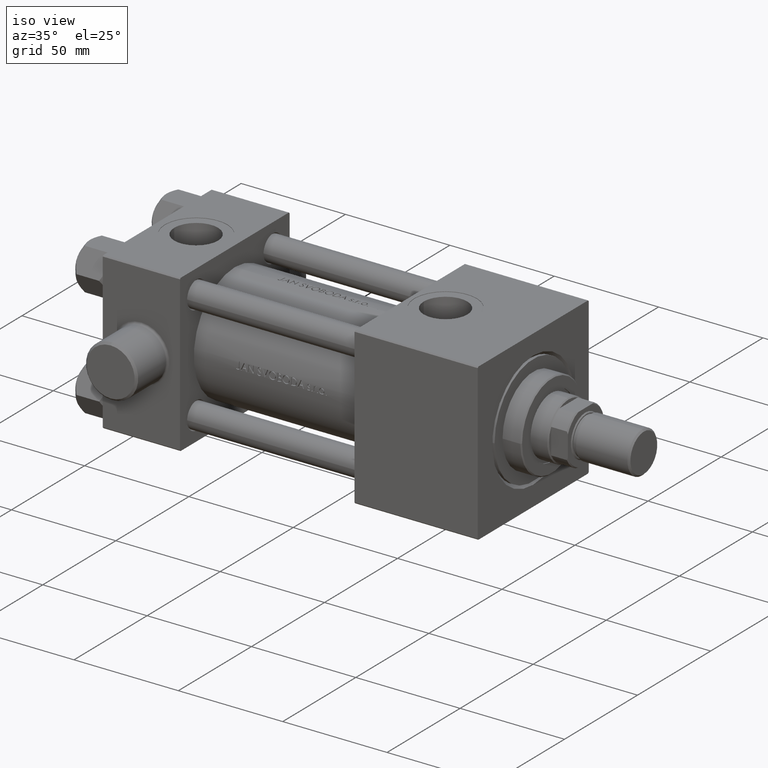
[diagram: clean part render]
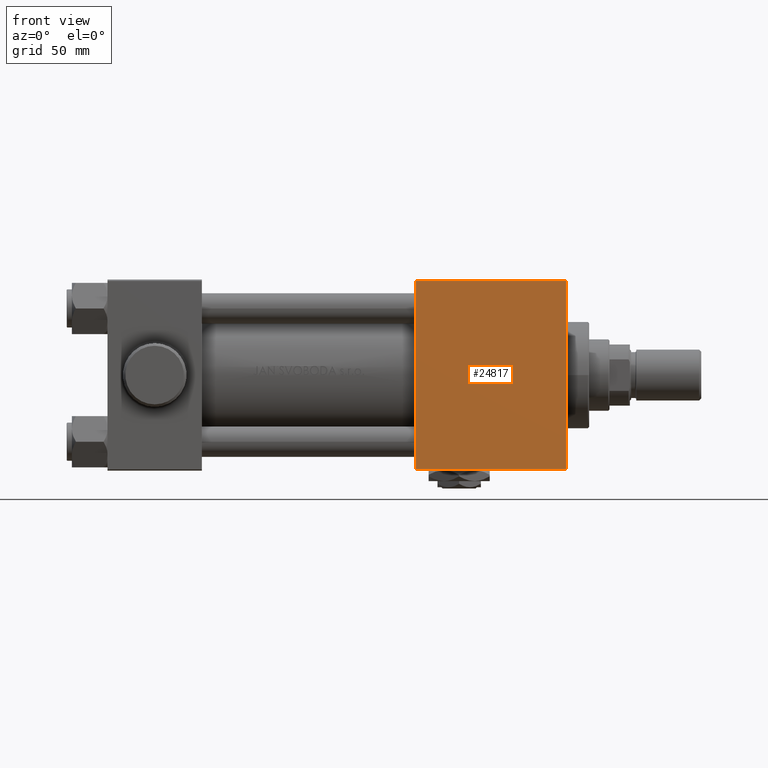
[diagram: tour spotlight — one face highlighted and labeled with its STEP entity id]
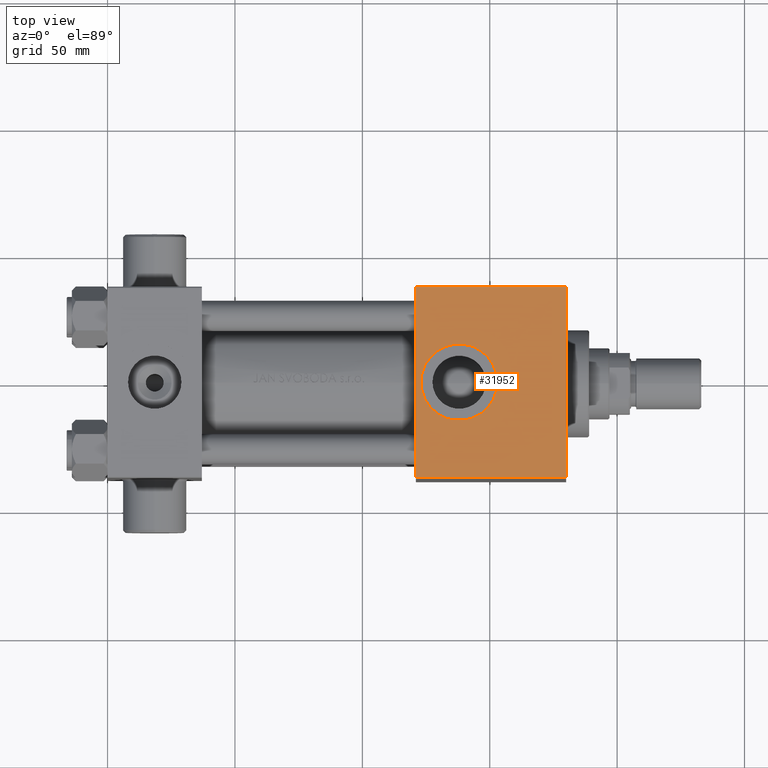
[diagram: tour spotlight — one face highlighted and labeled with its STEP entity id]
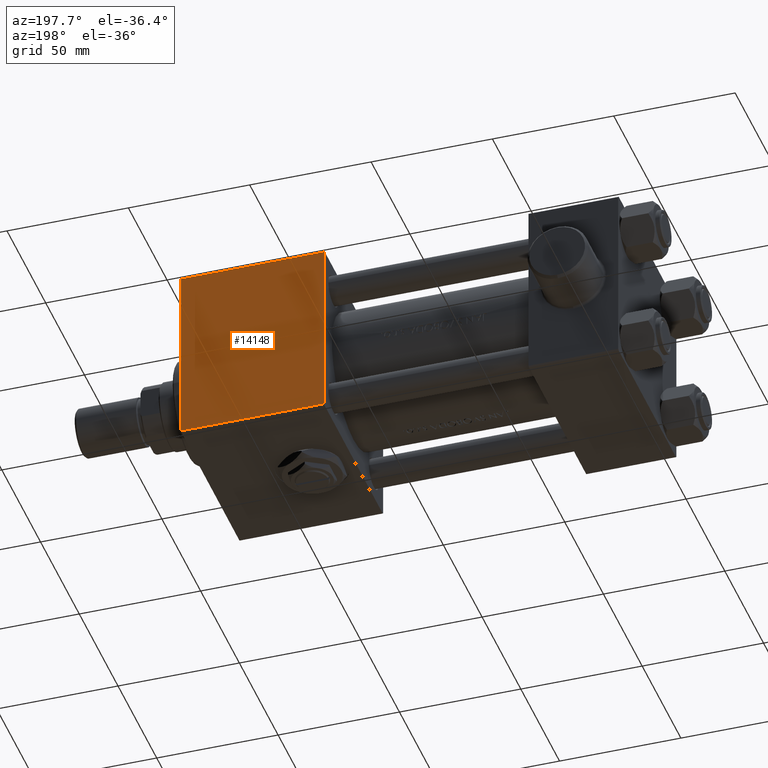
[diagram: tour spotlight — one face highlighted and labeled with its STEP entity id]
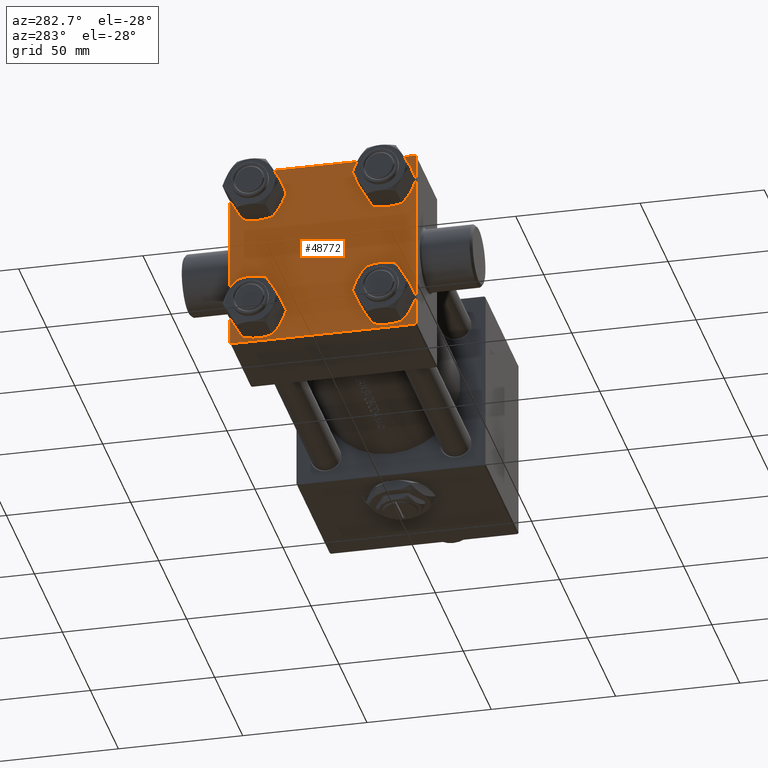
[diagram: tour spotlight — one face highlighted and labeled with its STEP entity id]
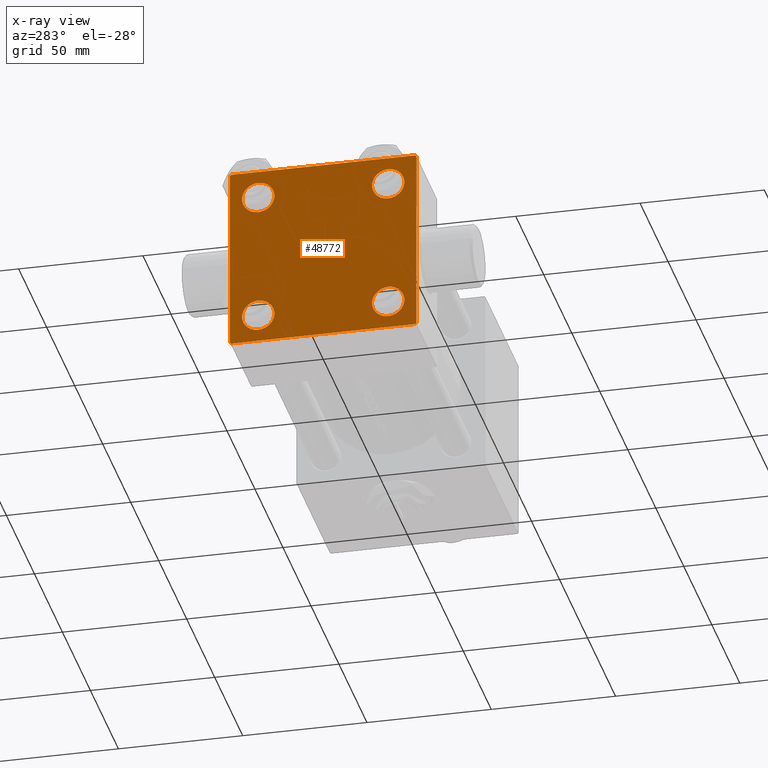
[diagram: x-ray of the same camera — body ghosted, this tour face saturated]
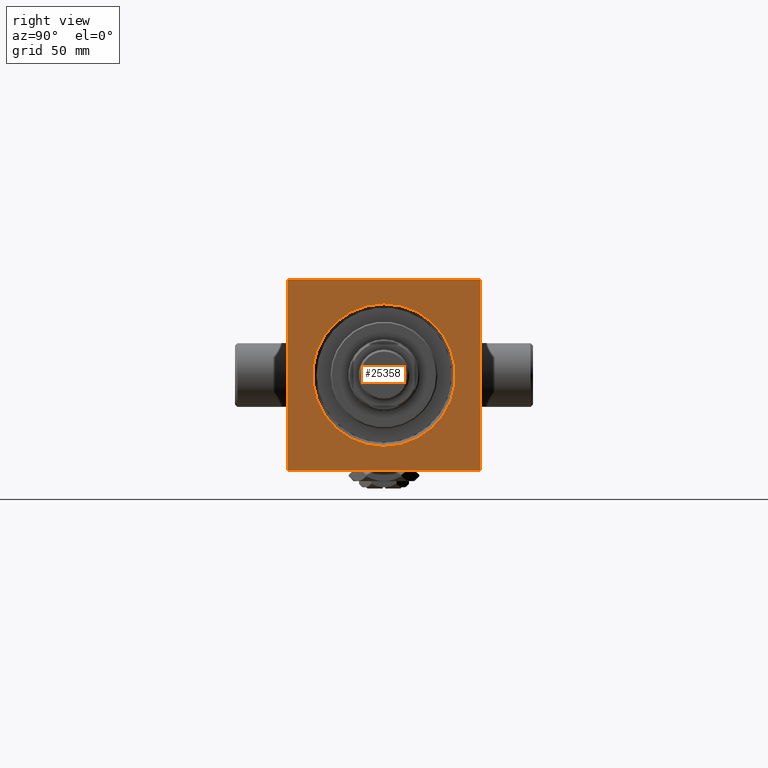
[diagram: tour spotlight — one face highlighted and labeled with its STEP entity id]
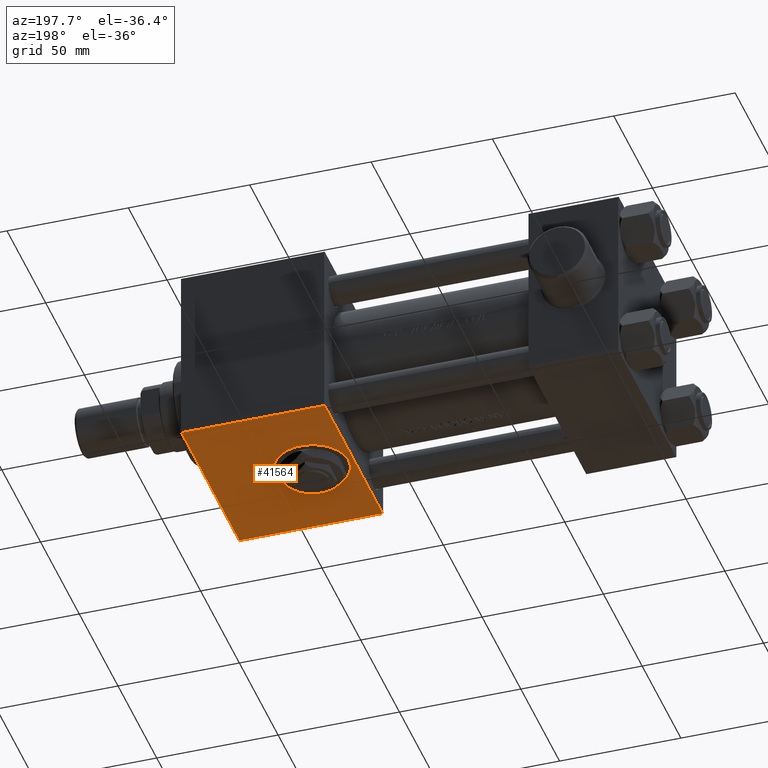
[diagram: tour spotlight — one face highlighted and labeled with its STEP entity id]
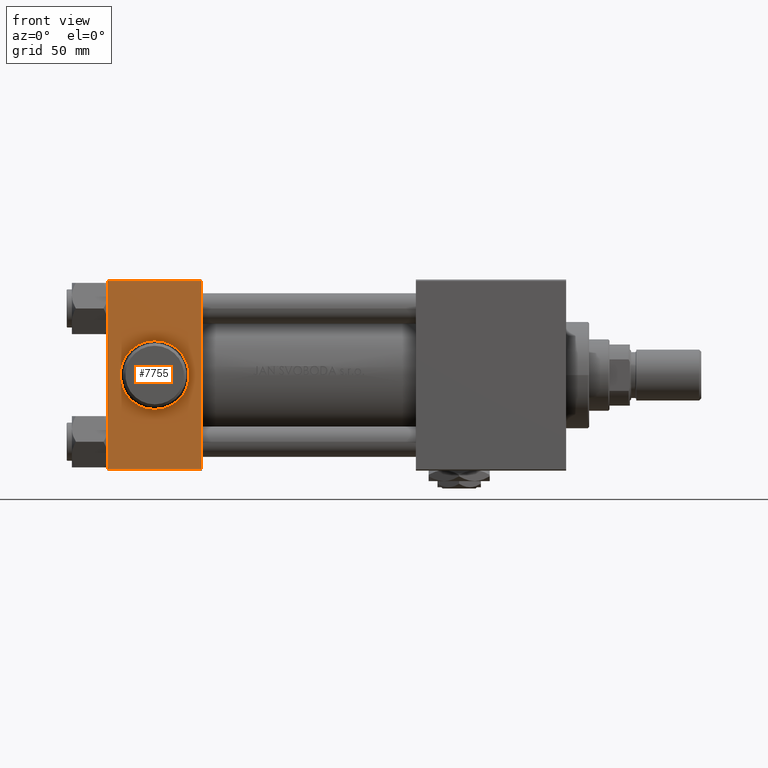
[diagram: tour spotlight — one face highlighted and labeled with its STEP entity id]
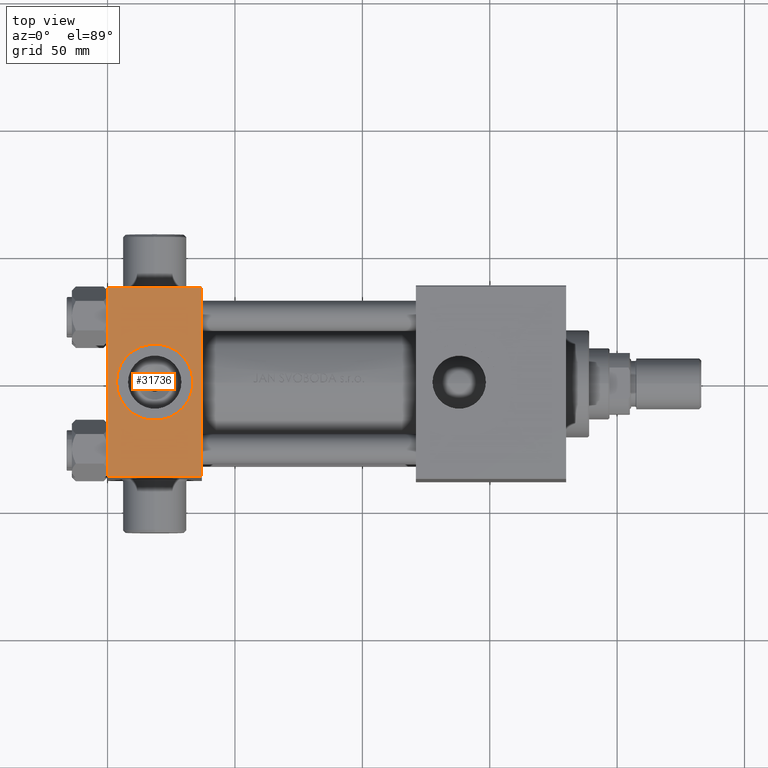
[diagram: tour spotlight — one face highlighted and labeled with its STEP entity id]
A machine part: a face-by-face anatomy tour. The part has 1133 B-rep faces; the first image is the clean iso view, then the 8 largest visible faces are spotlighted one at a time (largest first), each with its STEP entity span.

Face 1 — front view, entity #24817. In plain terms, the highlighted planar face has unit normal (0, 1, -0).
Definition (entity closure, byte-faithful):
#85 = AXIS2_PLACEMENT_3D ( 'NONE', #26295, #48593, #41884 ) ;
#612 = VECTOR ( 'NONE', #11657, 1000.000000000000000 ) ;
#1131 = CARTESIAN_POINT ( 'NONE',  ( 121.0000000000000000, -38.00000000000000000, 37.00000000000002842 ) ) ;
#1255 = LINE ( 'NONE', #11416, #612 ) ;
#4482 = ORIENTED_EDGE ( 'NONE', *, *, #5498, .T. ) ;
#4583 = VERTEX_POINT ( 'NONE', #20187 ) ;
#5498 = EDGE_CURVE ( 'NONE', #4583, #30965, #17186, .T. ) ;
#6534 = CARTESIAN_POINT ( 'NONE',  ( 180.0000000000000000, -38.00000000000000000, 37.00000000000002842 ) ) ;
#7461 = PLANE ( 'NONE',  #85 ) ;
#10933 = FACE_OUTER_BOUND ( 'NONE', #46636, .T. ) ;
#11416 = CARTESIAN_POINT ( 'NONE',  ( 180.0000000000000000, -38.00000000000000000, 37.50000000000000000 ) ) ;
#11657 = DIRECTION ( 'NONE',  ( 0.000000000000000000, -9.251858538542971581E-17, -1.000000000000000000 ) ) ;
#13559 = CARTESIAN_POINT ( 'NONE',  ( 121.0000000000000000, -38.00000000000000711, -36.99999999999998579 ) ) ;
#14429 = VECTOR ( 'NONE', #32552, 1000.000000000000000 ) ;
#15903 = CARTESIAN_POINT ( 'NONE',  ( 180.0000000000000000, -38.00000000000000711, -36.99999999999998579 ) ) ;
#17186 = LINE ( 'NONE', #6534, #22497 ) ;
#18176 = LINE ( 'NONE', #22129, #14429 ) ;
#19117 = DIRECTION ( 'NONE',  ( 1.000000000000000000, 0.000000000000000000, 0.000000000000000000 ) ) ;
#20180 = VERTEX_POINT ( 'NONE', #48051 ) ;
#20187 = CARTESIAN_POINT ( 'NONE',  ( 180.0000000000000000, -38.00000000000000000, 37.00000000000002842 ) ) ;
#22129 = CARTESIAN_POINT ( 'NONE',  ( 121.0000000000000000, -38.00000000000000000, 37.50000000000000000 ) ) ;
#22497 = VECTOR ( 'NONE', #36485, 1000.000000000000000 ) ;
#24817 = ADVANCED_FACE ( 'NONE', ( #10933 ), #7461, .F. ) ;
#25433 = ORIENTED_EDGE ( 'NONE', *, *, #45424, .T. ) ;
#26295 = CARTESIAN_POINT ( 'NONE',  ( 180.0000000000000000, -38.00000000000000000, 37.50000000000000000 ) ) ;
#30606 = ORIENTED_EDGE ( 'NONE', *, *, #49023, .T. ) ;
#30965 = VERTEX_POINT ( 'NONE', #1131 ) ;
#31800 = VECTOR ( 'NONE', #19117, 1000.000000000000000 ) ;
#32552 = DIRECTION ( 'NONE',  ( 0.000000000000000000, -9.251858538542971581E-17, -1.000000000000000000 ) ) ;
#34223 = LINE ( 'NONE', #15903, #31800 ) ;
#35606 = EDGE_CURVE ( 'NONE', #4583, #20180, #1255, .T. ) ;
#36485 = DIRECTION ( 'NONE',  ( -1.000000000000000000, 0.000000000000000000, 0.000000000000000000 ) ) ;
#41884 = DIRECTION ( 'NONE',  ( 0.000000000000000000, 9.251858538542971581E-17, 1.000000000000000000 ) ) ;
#42983 = VERTEX_POINT ( 'NONE', #13559 ) ;
#43966 = ORIENTED_EDGE ( 'NONE', *, *, #35606, .F. ) ;
#45424 = EDGE_CURVE ( 'NONE', #42983, #20180, #34223, .T. ) ;
#46636 = EDGE_LOOP ( 'NONE', ( #30606, #25433, #43966, #4482 ) ) ;
#48051 = CARTESIAN_POINT ( 'NONE',  ( 180.0000000000000000, -38.00000000000000711, -36.99999999999998579 ) ) ;
#48593 = DIRECTION ( 'NONE',  ( 0.000000000000000000, 1.000000000000000000, -9.251858538542971581E-17 ) ) ;
#49023 = EDGE_CURVE ( 'NONE', #30965, #42983, #18176, .T. ) ;

Face 2 — top view, entity #31952. In plain terms, the highlighted planar face has unit normal (0, 0, -1).
Definition (entity closure, byte-faithful):
#525 = EDGE_CURVE ( 'NONE', #19227, #16995, #3499, .T. ) ;
#1736 = VECTOR ( 'NONE', #9128, 1000.000000000000000 ) ;
#2059 = FACE_OUTER_BOUND ( 'NONE', #45504, .T. ) ;
#2088 = LINE ( 'NONE', #13740, #21514 ) ;
#2390 = EDGE_CURVE ( 'NONE', #18001, #47969, #32340, .T. ) ;
#3499 = CIRCLE ( 'NONE', #43057, 15.00000000000001421 ) ;
#3519 = ORIENTED_EDGE ( 'NONE', *, *, #2390, .T. ) ;
#6255 = FACE_BOUND ( 'NONE', #34344, .T. ) ;
#6538 = DIRECTION ( 'NONE',  ( 0.000000000000000000, -1.000000000000000000, -9.130123557772669567E-17 ) ) ;
#6794 = EDGE_CURVE ( 'NONE', #16995, #19227, #39967, .T. ) ;
#7462 = CARTESIAN_POINT ( 'NONE',  ( 180.0000000000000000, -37.50000000000002842, 37.50000000000000000 ) ) ;
#8978 = EDGE_CURVE ( 'NONE', #47969, #33264, #17422, .T. ) ;
#9128 = DIRECTION ( 'NONE',  ( -1.000000000000000000, 0.000000000000000000, 0.000000000000000000 ) ) ;
#13728 = DIRECTION ( 'NONE',  ( 1.000000000000000000, 0.000000000000000000, 0.000000000000000000 ) ) ;
#13740 = CARTESIAN_POINT ( 'NONE',  ( 180.0000000000000000, 38.00000000000000000, 37.50000000000000711 ) ) ;
#14435 = CARTESIAN_POINT ( 'NONE',  ( 138.0000000000000000, -3.423796334164751322E-15, 37.50000000000000711 ) ) ;
#16327 = VECTOR ( 'NONE', #13728, 1000.000000000000000 ) ;
#16995 = VERTEX_POINT ( 'NONE', #44647 ) ;
#17157 = CARTESIAN_POINT ( 'NONE',  ( 180.0000000000000000, 38.00000000000000000, 37.50000000000000711 ) ) ;
#17422 = LINE ( 'NONE', #35752, #16327 ) ;
#18001 = VERTEX_POINT ( 'NONE', #33440 ) ;
#18909 = ORIENTED_EDGE ( 'NONE', *, *, #525, .F. ) ;
#19219 = ORIENTED_EDGE ( 'NONE', *, *, #6794, .F. ) ;
#19227 = VERTEX_POINT ( 'NONE', #34733 ) ;
#21360 = PLANE ( 'NONE',  #21648 ) ;
#21514 = VECTOR ( 'NONE', #6538, 1000.000000000000000 ) ;
#21648 = AXIS2_PLACEMENT_3D ( 'NONE', #17157, #32258, #25325 ) ;
#21775 = VECTOR ( 'NONE', #28628, 1000.000000000000000 ) ;
#25325 = DIRECTION ( 'NONE',  ( 0.000000000000000000, 1.000000000000000000, 9.130123557772669567E-17 ) ) ;
#26911 = EDGE_CURVE ( 'NONE', #37230, #33264, #2088, .T. ) ;
#27133 = CARTESIAN_POINT ( 'NONE',  ( 121.0000000000000000, -37.50000000000002842, 37.50000000000000000 ) ) ;
#28050 = ORIENTED_EDGE ( 'NONE', *, *, #26911, .F. ) ;
#28628 = DIRECTION ( 'NONE',  ( 0.000000000000000000, -1.000000000000000000, -9.130123557772669567E-17 ) ) ;
#28782 = ORIENTED_EDGE ( 'NONE', *, *, #8978, .T. ) ;
#31645 = LINE ( 'NONE', #46780, #1736 ) ;
#31952 = ADVANCED_FACE ( 'NONE', ( #6255, #2059 ), #21360, .F. ) ;
#32258 = DIRECTION ( 'NONE',  ( 0.000000000000000000, 9.130123557772669567E-17, -1.000000000000000000 ) ) ;
#32340 = LINE ( 'NONE', #47471, #21775 ) ;
#33264 = VERTEX_POINT ( 'NONE', #7462 ) ;
#33440 = CARTESIAN_POINT ( 'NONE',  ( 121.0000000000000000, 37.50000000000002842, 37.50000000000000711 ) ) ;
#33636 = AXIS2_PLACEMENT_3D ( 'NONE', #37565, #36608, #41045 ) ;
#34344 = EDGE_LOOP ( 'NONE', ( #18909, #19219 ) ) ;
#34733 = CARTESIAN_POINT ( 'NONE',  ( 153.0000000000000284, -3.423796334164751322E-15, 37.50000000000000711 ) ) ;
#35752 = CARTESIAN_POINT ( 'NONE',  ( 180.0000000000000000, -37.50000000000002842, 37.50000000000000000 ) ) ;
#36608 = DIRECTION ( 'NONE',  ( 0.000000000000000000, 0.000000000000000000, 1.000000000000000000 ) ) ;
#36706 = CARTESIAN_POINT ( 'NONE',  ( 180.0000000000000000, 37.50000000000002842, 37.50000000000000711 ) ) ;
#37230 = VERTEX_POINT ( 'NONE', #36706 ) ;
#37565 = CARTESIAN_POINT ( 'NONE',  ( 138.0000000000000000, -3.423796334164751322E-15, 37.50000000000000711 ) ) ;
#39967 = CIRCLE ( 'NONE', #33636, 15.00000000000001421 ) ;
#41045 = DIRECTION ( 'NONE',  ( 1.000000000000000000, 0.000000000000000000, 0.000000000000000000 ) ) ;
#43057 = AXIS2_PLACEMENT_3D ( 'NONE', #14435, #44390, #43910 ) ;
#43910 = DIRECTION ( 'NONE',  ( 1.000000000000000000, 0.000000000000000000, 0.000000000000000000 ) ) ;
#44390 = DIRECTION ( 'NONE',  ( 0.000000000000000000, 0.000000000000000000, 1.000000000000000000 ) ) ;
#44647 = CARTESIAN_POINT ( 'NONE',  ( 122.9999999999999858, -1.586826135443718775E-15, 37.50000000000000711 ) ) ;
#44814 = ORIENTED_EDGE ( 'NONE', *, *, #45002, .T. ) ;
#45002 = EDGE_CURVE ( 'NONE', #37230, #18001, #31645, .T. ) ;
#45504 = EDGE_LOOP ( 'NONE', ( #3519, #28782, #28050, #44814 ) ) ;
#46780 = CARTESIAN_POINT ( 'NONE',  ( 121.0000000000000000, 37.50000000000002842, 37.50000000000000711 ) ) ;
#47471 = CARTESIAN_POINT ( 'NONE',  ( 121.0000000000000000, 38.00000000000000000, 37.50000000000000711 ) ) ;
#47969 = VERTEX_POINT ( 'NONE', #27133 ) ;

Face 3 — auxiliary view, entity #14148. In plain terms, the highlighted planar face has unit normal (0, 1, 0).
Definition (entity closure, byte-faithful):
#402 = ORIENTED_EDGE ( 'NONE', *, *, #32460, .T. ) ;
#1363 = VERTEX_POINT ( 'NONE', #34819 ) ;
#6849 = DIRECTION ( 'NONE',  ( 0.000000000000000000, 0.000000000000000000, -1.000000000000000000 ) ) ;
#8194 = LINE ( 'NONE', #38878, #35731 ) ;
#10325 = PLANE ( 'NONE',  #46522 ) ;
#14063 = CARTESIAN_POINT ( 'NONE',  ( 180.0000000000000000, 38.00000000000000000, 37.00000000000006395 ) ) ;
#14148 = ADVANCED_FACE ( 'NONE', ( #44016 ), #10325, .T. ) ;
#15056 = CARTESIAN_POINT ( 'NONE',  ( 121.0000000000000000, 38.00000000000000000, 37.00000000000006395 ) ) ;
#18233 = CARTESIAN_POINT ( 'NONE',  ( 180.0000000000000000, 38.00000000000000000, -37.00000000000000711 ) ) ;
#19587 = VECTOR ( 'NONE', #43342, 1000.000000000000000 ) ;
#21645 = ORIENTED_EDGE ( 'NONE', *, *, #35688, .T. ) ;
#24013 = VECTOR ( 'NONE', #38969, 1000.000000000000000 ) ;
#24110 = CARTESIAN_POINT ( 'NONE',  ( 180.0000000000000000, 38.00000000000000000, 37.00000000000006395 ) ) ;
#24708 = DIRECTION ( 'NONE',  ( 0.000000000000000000, -0.000000000000000000, 1.000000000000000000 ) ) ;
#25680 = CARTESIAN_POINT ( 'NONE',  ( 180.0000000000000000, 38.00000000000000000, 37.50000000000000711 ) ) ;
#27346 = LINE ( 'NONE', #24110, #24013 ) ;
#28355 = CARTESIAN_POINT ( 'NONE',  ( 180.0000000000000000, 38.00000000000000000, -37.00000000000000711 ) ) ;
#32460 = EDGE_CURVE ( 'NONE', #47015, #33831, #27346, .T. ) ;
#33097 = CARTESIAN_POINT ( 'NONE',  ( 180.0000000000000000, 38.00000000000000000, 37.50000000000000711 ) ) ;
#33831 = VERTEX_POINT ( 'NONE', #14063 ) ;
#34207 = EDGE_LOOP ( 'NONE', ( #44006, #402, #37947, #21645 ) ) ;
#34675 = DIRECTION ( 'NONE',  ( 0.000000000000000000, 0.000000000000000000, -1.000000000000000000 ) ) ;
#34819 = CARTESIAN_POINT ( 'NONE',  ( 121.0000000000000000, 38.00000000000000000, -37.00000000000000711 ) ) ;
#35412 = LINE ( 'NONE', #25680, #47290 ) ;
#35688 = EDGE_CURVE ( 'NONE', #36139, #1363, #47318, .T. ) ;
#35691 = EDGE_CURVE ( 'NONE', #33831, #36139, #35412, .T. ) ;
#35731 = VECTOR ( 'NONE', #34675, 1000.000000000000000 ) ;
#36139 = VERTEX_POINT ( 'NONE', #28355 ) ;
#37947 = ORIENTED_EDGE ( 'NONE', *, *, #35691, .T. ) ;
#38878 = CARTESIAN_POINT ( 'NONE',  ( 121.0000000000000000, 38.00000000000000000, 37.50000000000000711 ) ) ;
#38969 = DIRECTION ( 'NONE',  ( 1.000000000000000000, 0.000000000000000000, 0.000000000000000000 ) ) ;
#43342 = DIRECTION ( 'NONE',  ( -1.000000000000000000, 0.000000000000000000, 0.000000000000000000 ) ) ;
#44006 = ORIENTED_EDGE ( 'NONE', *, *, #48172, .F. ) ;
#44016 = FACE_OUTER_BOUND ( 'NONE', #34207, .T. ) ;
#46522 = AXIS2_PLACEMENT_3D ( 'NONE', #33097, #48223, #24708 ) ;
#47015 = VERTEX_POINT ( 'NONE', #15056 ) ;
#47290 = VECTOR ( 'NONE', #6849, 1000.000000000000000 ) ;
#47318 = LINE ( 'NONE', #18233, #19587 ) ;
#48172 = EDGE_CURVE ( 'NONE', #47015, #1363, #8194, .T. ) ;
#48223 = DIRECTION ( 'NONE',  ( -0.000000000000000000, 1.000000000000000000, 0.000000000000000000 ) ) ;

Face 4 — auxiliary view, entity #48772. An x-ray twin of the same camera follows (body ghosted, this face saturated) — the face is partly hidden behind the body. In plain terms, the highlighted planar face has unit normal (-1, 0, 0).
Definition (entity closure, byte-faithful):
#171 = AXIS2_PLACEMENT_3D ( 'NONE', #41247, #36566, #33088 ) ;
#997 = EDGE_CURVE ( 'NONE', #8246, #35215, #5908, .T. ) ;
#1084 = CIRCLE ( 'NONE', #39810, 6.500000000000023093 ) ;
#1728 = ORIENTED_EDGE ( 'NONE', *, *, #997, .F. ) ;
#1775 = CARTESIAN_POINT ( 'NONE',  ( 0.000000000000000000, 36.99999999999997868, -37.50000000000000000 ) ) ;
#1892 = AXIS2_PLACEMENT_3D ( 'NONE', #29811, #14722, #41699 ) ;
#2333 = EDGE_CURVE ( 'NONE', #17451, #11848, #38538, .T. ) ;
#3149 = LINE ( 'NONE', #41024, #8597 ) ;
#3246 = EDGE_LOOP ( 'NONE', ( #23034, #32550 ) ) ;
#3356 = CIRCLE ( 'NONE', #6507, 6.500000000000023093 ) ;
#4096 = ORIENTED_EDGE ( 'NONE', *, *, #31097, .T. ) ;
#4121 = DIRECTION ( 'NONE',  ( 0.000000000000000000, 0.000000000000000000, -1.000000000000000000 ) ) ;
#4994 = ORIENTED_EDGE ( 'NONE', *, *, #20473, .T. ) ;
#5127 = DIRECTION ( 'NONE',  ( -0.000000000000000000, -0.7071067811865474617, -0.7071067811865474617 ) ) ;
#5427 = DIRECTION ( 'NONE',  ( 0.000000000000000000, 0.000000000000000000, 1.000000000000000000 ) ) ;
#5707 = ORIENTED_EDGE ( 'NONE', *, *, #14259, .T. ) ;
#5803 = EDGE_CURVE ( 'NONE', #35590, #27983, #9080, .T. ) ;
#5903 = VECTOR ( 'NONE', #10590, 1000.000000000000000 ) ;
#5908 = LINE ( 'NONE', #32143, #5903 ) ;
#5913 = EDGE_CURVE ( 'NONE', #24459, #42721, #8298, .T. ) ;
#6117 = EDGE_CURVE ( 'NONE', #27983, #35590, #20959, .T. ) ;
#6442 = CARTESIAN_POINT ( 'NONE',  ( 0.000000000000000000, 26.14999999999999858, -19.64999999999998792 ) ) ;
#6507 = AXIS2_PLACEMENT_3D ( 'NONE', #39396, #20586, #47342 ) ;
#6734 = ORIENTED_EDGE ( 'NONE', *, *, #39387, .F. ) ;
#7485 = DIRECTION ( 'NONE',  ( 1.000000000000000000, -0.000000000000000000, 0.000000000000000000 ) ) ;
#7939 = ORIENTED_EDGE ( 'NONE', *, *, #17158, .T. ) ;
#8073 = LINE ( 'NONE', #26657, #37083 ) ;
#8200 = CARTESIAN_POINT ( 'NONE',  ( 0.000000000000000000, -26.14999999999999147, -19.64999999999999503 ) ) ;
#8246 = VERTEX_POINT ( 'NONE', #27296 ) ;
#8298 = CIRCLE ( 'NONE', #32012, 6.500000000000023093 ) ;
#8498 = VECTOR ( 'NONE', #18928, 1000.000000000000000 ) ;
#8597 = VECTOR ( 'NONE', #29880, 1000.000000000000114 ) ;
#9080 = CIRCLE ( 'NONE', #23330, 6.500000000000015987 ) ;
#9289 = ORIENTED_EDGE ( 'NONE', *, *, #37109, .T. ) ;
#9325 = VERTEX_POINT ( 'NONE', #33677 ) ;
#9344 = FACE_BOUND ( 'NONE', #42440, .T. ) ;
#10261 = CARTESIAN_POINT ( 'NONE',  ( 0.000000000000000000, 37.24999999999999289, 37.24999999999999289 ) ) ;
#10590 = DIRECTION ( 'NONE',  ( 0.000000000000000000, 9.251858538542971581E-17, -1.000000000000000000 ) ) ;
#10764 = CARTESIAN_POINT ( 'NONE',  ( 0.000000000000000000, 37.49999999999999289, -37.50000000000000000 ) ) ;
#10799 = VERTEX_POINT ( 'NONE', #25085 ) ;
#11006 = CIRCLE ( 'NONE', #32363, 6.500000000000023093 ) ;
#11848 = VERTEX_POINT ( 'NONE', #1775 ) ;
#12074 = ORIENTED_EDGE ( 'NONE', *, *, #45421, .T. ) ;
#12166 = EDGE_LOOP ( 'NONE', ( #28601, #12074 ) ) ;
#12187 = CIRCLE ( 'NONE', #1892, 6.500000000000015987 ) ;
#12371 = DIRECTION ( 'NONE',  ( 1.000000000000000000, -0.000000000000000000, 0.000000000000000000 ) ) ;
#13946 = VERTEX_POINT ( 'NONE', #19038 ) ;
#14259 = EDGE_CURVE ( 'NONE', #9325, #17451, #33821, .T. ) ;
#14722 = DIRECTION ( 'NONE',  ( 1.000000000000000000, -0.000000000000000000, 0.000000000000000000 ) ) ;
#14781 = DIRECTION ( 'NONE',  ( 0.000000000000000000, -0.7071067811865524577, 0.7071067811865426878 ) ) ;
#15656 = DIRECTION ( 'NONE',  ( 1.000000000000000000, -0.000000000000000000, 0.000000000000000000 ) ) ;
#16071 = DIRECTION ( 'NONE',  ( 0.000000000000000000, -1.000000000000000000, -9.251858538542971581E-17 ) ) ;
#16087 = CARTESIAN_POINT ( 'NONE',  ( 0.000000000000000000, -26.14999999999999147, -26.15000000000000924 ) ) ;
#16573 = CARTESIAN_POINT ( 'NONE',  ( 0.000000000000000000, 37.49999999999999289, -36.99999999999998579 ) ) ;
#16851 = CARTESIAN_POINT ( 'NONE',  ( 0.000000000000000000, 26.14999999999999858, 26.15000000000000213 ) ) ;
#17087 = DIRECTION ( 'NONE',  ( 1.000000000000000000, -0.000000000000000000, 0.000000000000000000 ) ) ;
#17158 = EDGE_CURVE ( 'NONE', #35410, #17388, #11006, .T. ) ;
#17388 = VERTEX_POINT ( 'NONE', #35631 ) ;
#17451 = VERTEX_POINT ( 'NONE', #16573 ) ;
#18928 = DIRECTION ( 'NONE',  ( 0.000000000000000000, -1.000000000000000000, -9.251858538542972814E-17 ) ) ;
#18996 = CARTESIAN_POINT ( 'NONE',  ( 0.000000000000000000, -26.14999999999999147, -26.15000000000000924 ) ) ;
#19038 = CARTESIAN_POINT ( 'NONE',  ( 0.000000000000000000, 36.99999999999999289, 37.50000000000000000 ) ) ;
#19885 = EDGE_LOOP ( 'NONE', ( #5707, #30541, #48831, #4994, #1728, #9289, #6734, #37808 ) ) ;
#20473 = EDGE_CURVE ( 'NONE', #31251, #35215, #8073, .T. ) ;
#20586 = DIRECTION ( 'NONE',  ( 1.000000000000000000, -0.000000000000000000, 0.000000000000000000 ) ) ;
#20816 = EDGE_LOOP ( 'NONE', ( #4096, #7939 ) ) ;
#20959 = CIRCLE ( 'NONE', #46275, 6.500000000000015987 ) ;
#22130 = LINE ( 'NONE', #10261, #33268 ) ;
#22188 = CARTESIAN_POINT ( 'NONE',  ( 0.000000000000000000, 37.49999999999999289, 37.50000000000000000 ) ) ;
#23034 = ORIENTED_EDGE ( 'NONE', *, *, #5803, .T. ) ;
#23330 = AXIS2_PLACEMENT_3D ( 'NONE', #16087, #12371, #27471 ) ;
#23461 = ORIENTED_EDGE ( 'NONE', *, *, #45562, .T. ) ;
#24453 = FACE_BOUND ( 'NONE', #3246, .T. ) ;
#24459 = VERTEX_POINT ( 'NONE', #44436 ) ;
#24538 = EDGE_CURVE ( 'NONE', #13946, #9325, #22130, .T. ) ;
#24729 = CARTESIAN_POINT ( 'NONE',  ( 0.000000000000000000, -26.14999999999999147, 26.15000000000000924 ) ) ;
#24769 = CARTESIAN_POINT ( 'NONE',  ( 0.000000000000000000, -37.00000000000002132, -37.50000000000000711 ) ) ;
#24967 = DIRECTION ( 'NONE',  ( 1.000000000000000000, -0.000000000000000000, 0.000000000000000000 ) ) ;
#25085 = CARTESIAN_POINT ( 'NONE',  ( 0.000000000000000000, 26.14999999999999858, -32.65000000000001990 ) ) ;
#25128 = DIRECTION ( 'NONE',  ( 0.000000000000000000, 0.7071067811865474617, -0.7071067811865474617 ) ) ;
#25285 = VECTOR ( 'NONE', #16071, 1000.000000000000000 ) ;
#25909 = PLANE ( 'NONE',  #171 ) ;
#26373 = LINE ( 'NONE', #10764, #8498 ) ;
#26657 = CARTESIAN_POINT ( 'NONE',  ( 0.000000000000000000, -37.24999999999975842, -37.25000000000027001 ) ) ;
#26805 = DIRECTION ( 'NONE',  ( 0.000000000000000000, 0.000000000000000000, 1.000000000000000000 ) ) ;
#26889 = VERTEX_POINT ( 'NONE', #32288 ) ;
#27296 = CARTESIAN_POINT ( 'NONE',  ( 0.000000000000000000, -37.50000000000000711, 36.99999999999999289 ) ) ;
#27301 = CARTESIAN_POINT ( 'NONE',  ( 0.000000000000000000, 26.14999999999999858, 26.15000000000000213 ) ) ;
#27471 = DIRECTION ( 'NONE',  ( 0.000000000000000000, 0.000000000000000000, 1.000000000000000000 ) ) ;
#27741 = CARTESIAN_POINT ( 'NONE',  ( 0.000000000000000000, -26.14999999999999147, 32.65000000000003411 ) ) ;
#27983 = VERTEX_POINT ( 'NONE', #35422 ) ;
#28145 = CARTESIAN_POINT ( 'NONE',  ( 0.000000000000000000, 37.24999999999998579, -37.24999999999998579 ) ) ;
#28601 = ORIENTED_EDGE ( 'NONE', *, *, #31776, .T. ) ;
#28971 = LINE ( 'NONE', #44078, #25285 ) ;
#29811 = CARTESIAN_POINT ( 'NONE',  ( 0.000000000000000000, 26.14999999999999858, -26.15000000000000213 ) ) ;
#29880 = DIRECTION ( 'NONE',  ( -0.000000000000000000, 0.7071067811865474617, 0.7071067811865474617 ) ) ;
#30517 = CARTESIAN_POINT ( 'NONE',  ( 0.000000000000000000, -37.50000000000000000, -37.00000000000003553 ) ) ;
#30541 = ORIENTED_EDGE ( 'NONE', *, *, #2333, .T. ) ;
#31097 = EDGE_CURVE ( 'NONE', #17388, #35410, #1084, .T. ) ;
#31251 = VERTEX_POINT ( 'NONE', #24769 ) ;
#31776 = EDGE_CURVE ( 'NONE', #39323, #10799, #12187, .T. ) ;
#32012 = AXIS2_PLACEMENT_3D ( 'NONE', #24729, #24967, #5427 ) ;
#32143 = CARTESIAN_POINT ( 'NONE',  ( 0.000000000000000000, -37.50000000000000711, 37.49999999999999289 ) ) ;
#32288 = CARTESIAN_POINT ( 'NONE',  ( 0.000000000000000000, -37.00000000000000711, 37.49999999999999289 ) ) ;
#32363 = AXIS2_PLACEMENT_3D ( 'NONE', #27301, #7485, #26805 ) ;
#32550 = ORIENTED_EDGE ( 'NONE', *, *, #6117, .T. ) ;
#33088 = DIRECTION ( 'NONE',  ( -0.000000000000000000, 0.000000000000000000, 1.000000000000000000 ) ) ;
#33268 = VECTOR ( 'NONE', #25128, 1000.000000000000114 ) ;
#33677 = CARTESIAN_POINT ( 'NONE',  ( 0.000000000000000000, 37.49999999999999289, 37.00000000000000000 ) ) ;
#33821 = LINE ( 'NONE', #22188, #37793 ) ;
#34494 = CARTESIAN_POINT ( 'NONE',  ( 0.000000000000000000, 26.14999999999999858, 19.64999999999998437 ) ) ;
#34577 = DIRECTION ( 'NONE',  ( 1.000000000000000000, -0.000000000000000000, 0.000000000000000000 ) ) ;
#34706 = CARTESIAN_POINT ( 'NONE',  ( 0.000000000000000000, 26.14999999999999858, -26.15000000000000213 ) ) ;
#34713 = EDGE_CURVE ( 'NONE', #11848, #31251, #26373, .T. ) ;
#35215 = VERTEX_POINT ( 'NONE', #30517 ) ;
#35410 = VERTEX_POINT ( 'NONE', #34494 ) ;
#35422 = CARTESIAN_POINT ( 'NONE',  ( 0.000000000000000000, -26.14999999999999147, -32.65000000000002700 ) ) ;
#35590 = VERTEX_POINT ( 'NONE', #8200 ) ;
#35631 = CARTESIAN_POINT ( 'NONE',  ( 0.000000000000000000, 26.14999999999999858, 32.65000000000002700 ) ) ;
#35838 = FACE_BOUND ( 'NONE', #20816, .T. ) ;
#36566 = DIRECTION ( 'NONE',  ( -1.000000000000000000, 0.000000000000000000, -0.000000000000000000 ) ) ;
#37083 = VECTOR ( 'NONE', #14781, 1000.000000000000000 ) ;
#37109 = EDGE_CURVE ( 'NONE', #8246, #26889, #3149, .T. ) ;
#37455 = ORIENTED_EDGE ( 'NONE', *, *, #5913, .T. ) ;
#37793 = VECTOR ( 'NONE', #4121, 1000.000000000000000 ) ;
#37808 = ORIENTED_EDGE ( 'NONE', *, *, #24538, .T. ) ;
#38538 = LINE ( 'NONE', #28145, #41524 ) ;
#39323 = VERTEX_POINT ( 'NONE', #6442 ) ;
#39387 = EDGE_CURVE ( 'NONE', #13946, #26889, #28971, .T. ) ;
#39396 = CARTESIAN_POINT ( 'NONE',  ( 0.000000000000000000, -26.14999999999999147, 26.15000000000000924 ) ) ;
#39549 = FACE_BOUND ( 'NONE', #12166, .T. ) ;
#39617 = DIRECTION ( 'NONE',  ( 0.000000000000000000, 0.000000000000000000, 1.000000000000000000 ) ) ;
#39810 = AXIS2_PLACEMENT_3D ( 'NONE', #16851, #17087, #39617 ) ;
#40036 = FACE_OUTER_BOUND ( 'NONE', #19885, .T. ) ;
#41024 = CARTESIAN_POINT ( 'NONE',  ( -0.000000000000000000, -37.25000000000000000, 37.25000000000000000 ) ) ;
#41247 = CARTESIAN_POINT ( 'NONE',  ( 0.000000000000000000, 0.000000000000000000, 0.000000000000000000 ) ) ;
#41524 = VECTOR ( 'NONE', #5127, 1000.000000000000114 ) ;
#41699 = DIRECTION ( 'NONE',  ( 0.000000000000000000, 0.000000000000000000, 1.000000000000000000 ) ) ;
#41778 = DIRECTION ( 'NONE',  ( 0.000000000000000000, 0.000000000000000000, 1.000000000000000000 ) ) ;
#41899 = DIRECTION ( 'NONE',  ( 0.000000000000000000, 0.000000000000000000, 1.000000000000000000 ) ) ;
#42440 = EDGE_LOOP ( 'NONE', ( #23461, #37455 ) ) ;
#42721 = VERTEX_POINT ( 'NONE', #27741 ) ;
#44078 = CARTESIAN_POINT ( 'NONE',  ( 0.000000000000000000, 37.49999999999999289, 37.50000000000000000 ) ) ;
#44436 = CARTESIAN_POINT ( 'NONE',  ( 0.000000000000000000, -26.14999999999999147, 19.64999999999999147 ) ) ;
#45242 = CIRCLE ( 'NONE', #46073, 6.500000000000015987 ) ;
#45421 = EDGE_CURVE ( 'NONE', #10799, #39323, #45242, .T. ) ;
#45562 = EDGE_CURVE ( 'NONE', #42721, #24459, #3356, .T. ) ;
#46073 = AXIS2_PLACEMENT_3D ( 'NONE', #34706, #15656, #41899 ) ;
#46275 = AXIS2_PLACEMENT_3D ( 'NONE', #18996, #34577, #41778 ) ;
#47342 = DIRECTION ( 'NONE',  ( 0.000000000000000000, 0.000000000000000000, 1.000000000000000000 ) ) ;
#48772 = ADVANCED_FACE ( 'NONE', ( #9344, #24453, #39549, #35838, #40036 ), #25909, .T. ) ;
#48831 = ORIENTED_EDGE ( 'NONE', *, *, #34713, .T. ) ;

Face 5 — right view, entity #25358. In plain terms, the highlighted planar face has unit normal (-1, 0, 0).
Definition (entity closure, byte-faithful):
#13 = CARTESIAN_POINT ( 'NONE',  ( 180.0000000000000000, -37.50000000000001421, -37.50000000000000000 ) ) ;
#419 = DIRECTION ( 'NONE',  ( -0.000000000000000000, -0.7071067811865474617, -0.7071067811865474617 ) ) ;
#612 = VECTOR ( 'NONE', #11657, 1000.000000000000000 ) ;
#1078 = LINE ( 'NONE', #42918, #9296 ) ;
#1255 = LINE ( 'NONE', #11416, #612 ) ;
#2088 = LINE ( 'NONE', #13740, #21514 ) ;
#2375 = ORIENTED_EDGE ( 'NONE', *, *, #25937, .T. ) ;
#2668 = CARTESIAN_POINT ( 'NONE',  ( 180.0000000000000000, 0.000000000000000000, 0.000000000000000000 ) ) ;
#4231 = DIRECTION ( 'NONE',  ( 0.000000000000000000, 0.000000000000000000, 1.000000000000000000 ) ) ;
#4447 = ORIENTED_EDGE ( 'NONE', *, *, #7624, .T. ) ;
#4583 = VERTEX_POINT ( 'NONE', #20187 ) ;
#4647 = ORIENTED_EDGE ( 'NONE', *, *, #35606, .T. ) ;
#4867 = VERTEX_POINT ( 'NONE', #25618 ) ;
#4942 = CARTESIAN_POINT ( 'NONE',  ( 180.0000000000000000, -37.50000000000001421, -37.50000000000000000 ) ) ;
#4976 = VECTOR ( 'NONE', #40679, 1000.000000000000000 ) ;
#5950 = EDGE_CURVE ( 'NONE', #20180, #12998, #31650, .T. ) ;
#6538 = DIRECTION ( 'NONE',  ( 0.000000000000000000, -1.000000000000000000, -9.130123557772669567E-17 ) ) ;
#6625 = DIRECTION ( 'NONE',  ( 0.000000000000000000, 0.000000000000000000, 1.000000000000000000 ) ) ;
#6849 = DIRECTION ( 'NONE',  ( 0.000000000000000000, 0.000000000000000000, -1.000000000000000000 ) ) ;
#7462 = CARTESIAN_POINT ( 'NONE',  ( 180.0000000000000000, -37.50000000000002842, 37.50000000000000000 ) ) ;
#7624 = EDGE_CURVE ( 'NONE', #48792, #39876, #12300, .T. ) ;
#8753 = ORIENTED_EDGE ( 'NONE', *, *, #35691, .F. ) ;
#9296 = VECTOR ( 'NONE', #34985, 1000.000000000000000 ) ;
#9978 = CARTESIAN_POINT ( 'NONE',  ( 180.0000000000000000, 37.50000000000002842, 37.50000000000000711 ) ) ;
#10406 = VECTOR ( 'NONE', #36671, 1000.000000000000000 ) ;
#11416 = CARTESIAN_POINT ( 'NONE',  ( 180.0000000000000000, -38.00000000000000000, 37.50000000000000000 ) ) ;
#11656 = EDGE_LOOP ( 'NONE', ( #4447, #17138 ) ) ;
#11657 = DIRECTION ( 'NONE',  ( 0.000000000000000000, -9.251858538542971581E-17, -1.000000000000000000 ) ) ;
#12300 = CIRCLE ( 'NONE', #41526, 27.99999999999999645 ) ;
#12998 = VERTEX_POINT ( 'NONE', #13 ) ;
#13472 = LINE ( 'NONE', #9978, #4976 ) ;
#13740 = CARTESIAN_POINT ( 'NONE',  ( 180.0000000000000000, 38.00000000000000000, 37.50000000000000711 ) ) ;
#13850 = PLANE ( 'NONE',  #27778 ) ;
#14063 = CARTESIAN_POINT ( 'NONE',  ( 180.0000000000000000, 38.00000000000000000, 37.00000000000006395 ) ) ;
#14769 = CARTESIAN_POINT ( 'NONE',  ( 180.0000000000000000, 0.000000000000000000, -27.99999999999999645 ) ) ;
#15690 = ORIENTED_EDGE ( 'NONE', *, *, #5950, .T. ) ;
#17138 = ORIENTED_EDGE ( 'NONE', *, *, #20431, .T. ) ;
#17772 = VECTOR ( 'NONE', #20519, 1000.000000000000000 ) ;
#20180 = VERTEX_POINT ( 'NONE', #48051 ) ;
#20187 = CARTESIAN_POINT ( 'NONE',  ( 180.0000000000000000, -38.00000000000000000, 37.00000000000002842 ) ) ;
#20431 = EDGE_CURVE ( 'NONE', #39876, #48792, #43436, .T. ) ;
#20519 = DIRECTION ( 'NONE',  ( 0.000000000000000000, 0.7071067811865328068, -0.7071067811865622277 ) ) ;
#21514 = VECTOR ( 'NONE', #6538, 1000.000000000000000 ) ;
#23597 = ORIENTED_EDGE ( 'NONE', *, *, #35384, .F. ) ;
#24134 = ORIENTED_EDGE ( 'NONE', *, *, #26911, .T. ) ;
#24975 = FACE_BOUND ( 'NONE', #11656, .T. ) ;
#25289 = CARTESIAN_POINT ( 'NONE',  ( 180.0000000000000000, 38.00000000000000000, -37.00000000000000711 ) ) ;
#25358 = ADVANCED_FACE ( 'NONE', ( #24975, #29174 ), #13850, .F. ) ;
#25618 = CARTESIAN_POINT ( 'NONE',  ( 180.0000000000000000, 37.49999999999997158, -37.50000000000000711 ) ) ;
#25680 = CARTESIAN_POINT ( 'NONE',  ( 180.0000000000000000, 38.00000000000000000, 37.50000000000000711 ) ) ;
#25937 = EDGE_CURVE ( 'NONE', #4867, #36139, #44351, .T. ) ;
#26753 = CARTESIAN_POINT ( 'NONE',  ( 180.0000000000000000, 0.000000000000000000, 0.000000000000000000 ) ) ;
#26911 = EDGE_CURVE ( 'NONE', #37230, #33264, #2088, .T. ) ;
#27160 = LINE ( 'NONE', #32023, #47608 ) ;
#27778 = AXIS2_PLACEMENT_3D ( 'NONE', #40073, #36839, #44287 ) ;
#28355 = CARTESIAN_POINT ( 'NONE',  ( 180.0000000000000000, 38.00000000000000000, -37.00000000000000711 ) ) ;
#28405 = AXIS2_PLACEMENT_3D ( 'NONE', #2668, #32862, #6625 ) ;
#29174 = FACE_OUTER_BOUND ( 'NONE', #34977, .T. ) ;
#31650 = LINE ( 'NONE', #4942, #17772 ) ;
#32023 = CARTESIAN_POINT ( 'NONE',  ( 180.0000000000000000, -38.00000000000000000, 37.00000000000002842 ) ) ;
#32575 = EDGE_CURVE ( 'NONE', #33831, #37230, #13472, .T. ) ;
#32862 = DIRECTION ( 'NONE',  ( -1.000000000000000000, -0.000000000000000000, 0.000000000000000000 ) ) ;
#33264 = VERTEX_POINT ( 'NONE', #7462 ) ;
#33831 = VERTEX_POINT ( 'NONE', #14063 ) ;
#34977 = EDGE_LOOP ( 'NONE', ( #4647, #15690, #23597, #2375, #8753, #38584, #24134, #44790 ) ) ;
#34985 = DIRECTION ( 'NONE',  ( 0.000000000000000000, -1.000000000000000000, 9.130123557772667102E-17 ) ) ;
#35384 = EDGE_CURVE ( 'NONE', #4867, #12998, #1078, .T. ) ;
#35412 = LINE ( 'NONE', #25680, #47290 ) ;
#35606 = EDGE_CURVE ( 'NONE', #4583, #20180, #1255, .T. ) ;
#35691 = EDGE_CURVE ( 'NONE', #33831, #36139, #35412, .T. ) ;
#36139 = VERTEX_POINT ( 'NONE', #28355 ) ;
#36671 = DIRECTION ( 'NONE',  ( -0.000000000000000000, 0.7071067811865672237, 0.7071067811865279218 ) ) ;
#36706 = CARTESIAN_POINT ( 'NONE',  ( 180.0000000000000000, 37.50000000000002842, 37.50000000000000711 ) ) ;
#36839 = DIRECTION ( 'NONE',  ( -1.000000000000000000, -0.000000000000000000, 0.000000000000000000 ) ) ;
#37230 = VERTEX_POINT ( 'NONE', #36706 ) ;
#38127 = DIRECTION ( 'NONE',  ( -1.000000000000000000, -0.000000000000000000, 0.000000000000000000 ) ) ;
#38584 = ORIENTED_EDGE ( 'NONE', *, *, #32575, .T. ) ;
#39876 = VERTEX_POINT ( 'NONE', #46956 ) ;
#40073 = CARTESIAN_POINT ( 'NONE',  ( 180.0000000000000000, 0.000000000000000000, 0.000000000000000000 ) ) ;
#40679 = DIRECTION ( 'NONE',  ( 0.000000000000000000, -0.7071067811865671127, 0.7071067811865279218 ) ) ;
#41526 = AXIS2_PLACEMENT_3D ( 'NONE', #26753, #38127, #4231 ) ;
#42918 = CARTESIAN_POINT ( 'NONE',  ( 180.0000000000000000, 38.00000000000000000, -37.50000000000000711 ) ) ;
#43436 = CIRCLE ( 'NONE', #28405, 27.99999999999999645 ) ;
#44287 = DIRECTION ( 'NONE',  ( 0.000000000000000000, 0.000000000000000000, 1.000000000000000000 ) ) ;
#44351 = LINE ( 'NONE', #25289, #10406 ) ;
#44790 = ORIENTED_EDGE ( 'NONE', *, *, #45257, .T. ) ;
#45257 = EDGE_CURVE ( 'NONE', #33264, #4583, #27160, .T. ) ;
#46956 = CARTESIAN_POINT ( 'NONE',  ( 180.0000000000000000, 3.429011037612588881E-15, 27.99999999999999645 ) ) ;
#47290 = VECTOR ( 'NONE', #6849, 1000.000000000000000 ) ;
#47608 = VECTOR ( 'NONE', #419, 1000.000000000000114 ) ;
#48051 = CARTESIAN_POINT ( 'NONE',  ( 180.0000000000000000, -38.00000000000000711, -36.99999999999998579 ) ) ;
#48792 = VERTEX_POINT ( 'NONE', #14769 ) ;

Face 6 — auxiliary view, entity #41564. In plain terms, the highlighted planar face has unit normal (0, -0, -1).
Definition (entity closure, byte-faithful):
#13 = CARTESIAN_POINT ( 'NONE',  ( 180.0000000000000000, -37.50000000000001421, -37.50000000000000000 ) ) ;
#336 = VERTEX_POINT ( 'NONE', #31519 ) ;
#1078 = LINE ( 'NONE', #42918, #9296 ) ;
#2567 = ORIENTED_EDGE ( 'NONE', *, *, #8535, .F. ) ;
#4867 = VERTEX_POINT ( 'NONE', #25618 ) ;
#6369 = ORIENTED_EDGE ( 'NONE', *, *, #11312, .T. ) ;
#6473 = FACE_BOUND ( 'NONE', #9949, .T. ) ;
#6806 = CIRCLE ( 'NONE', #25020, 15.00000000000000000 ) ;
#7581 = LINE ( 'NONE', #12039, #33963 ) ;
#8535 = EDGE_CURVE ( 'NONE', #336, #12015, #29719, .T. ) ;
#9270 = EDGE_CURVE ( 'NONE', #12015, #336, #6806, .T. ) ;
#9296 = VECTOR ( 'NONE', #34985, 1000.000000000000000 ) ;
#9652 = DIRECTION ( 'NONE',  ( 1.000000000000000000, 0.000000000000000000, 0.000000000000000000 ) ) ;
#9949 = EDGE_LOOP ( 'NONE', ( #29638, #2567 ) ) ;
#10901 = CARTESIAN_POINT ( 'NONE',  ( 123.0000000000000142, -3.423796334164750927E-15, -37.50000000000000711 ) ) ;
#11312 = EDGE_CURVE ( 'NONE', #12998, #37646, #22757, .T. ) ;
#12015 = VERTEX_POINT ( 'NONE', #10901 ) ;
#12039 = CARTESIAN_POINT ( 'NONE',  ( 121.0000000000000000, 38.00000000000000000, -37.50000000000000711 ) ) ;
#12998 = VERTEX_POINT ( 'NONE', #13 ) ;
#13225 = VECTOR ( 'NONE', #40864, 1000.000000000000000 ) ;
#13679 = CARTESIAN_POINT ( 'NONE',  ( 180.0000000000000000, 38.00000000000000000, -37.50000000000000711 ) ) ;
#16392 = DIRECTION ( 'NONE',  ( 0.000000000000000000, 0.000000000000000000, -1.000000000000000000 ) ) ;
#16564 = DIRECTION ( 'NONE',  ( 0.000000000000000000, 0.000000000000000000, -1.000000000000000000 ) ) ;
#16881 = CARTESIAN_POINT ( 'NONE',  ( 138.0000000000000000, -3.423796334164750927E-15, -37.50000000000000711 ) ) ;
#17852 = FACE_OUTER_BOUND ( 'NONE', #43465, .T. ) ;
#18226 = AXIS2_PLACEMENT_3D ( 'NONE', #13679, #21084, #21580 ) ;
#21084 = DIRECTION ( 'NONE',  ( 0.000000000000000000, -9.130123557772668334E-17, -1.000000000000000000 ) ) ;
#21580 = DIRECTION ( 'NONE',  ( 0.000000000000000000, 1.000000000000000000, -9.130123557772668334E-17 ) ) ;
#22757 = LINE ( 'NONE', #45800, #13225 ) ;
#24485 = DIRECTION ( 'NONE',  ( -1.000000000000000000, 0.000000000000000000, 0.000000000000000000 ) ) ;
#25020 = AXIS2_PLACEMENT_3D ( 'NONE', #16881, #16392, #31974 ) ;
#25276 = CARTESIAN_POINT ( 'NONE',  ( 121.0000000000000000, -37.50000000000001421, -37.50000000000000000 ) ) ;
#25618 = CARTESIAN_POINT ( 'NONE',  ( 180.0000000000000000, 37.49999999999997158, -37.50000000000000711 ) ) ;
#26834 = VECTOR ( 'NONE', #9652, 1000.000000000000000 ) ;
#29638 = ORIENTED_EDGE ( 'NONE', *, *, #9270, .F. ) ;
#29719 = CIRCLE ( 'NONE', #47912, 15.00000000000000000 ) ;
#31445 = CARTESIAN_POINT ( 'NONE',  ( 180.0000000000000000, 37.49999999999997158, -37.50000000000000711 ) ) ;
#31519 = CARTESIAN_POINT ( 'NONE',  ( 153.0000000000000284, -1.586826135443723113E-15, -37.50000000000000711 ) ) ;
#31974 = DIRECTION ( 'NONE',  ( -1.000000000000000000, 0.000000000000000000, 0.000000000000000000 ) ) ;
#33963 = VECTOR ( 'NONE', #37539, 1000.000000000000000 ) ;
#34985 = DIRECTION ( 'NONE',  ( 0.000000000000000000, -1.000000000000000000, 9.130123557772667102E-17 ) ) ;
#35384 = EDGE_CURVE ( 'NONE', #4867, #12998, #1078, .T. ) ;
#35622 = CARTESIAN_POINT ( 'NONE',  ( 138.0000000000000000, -3.423796334164750927E-15, -37.50000000000000711 ) ) ;
#36424 = PLANE ( 'NONE',  #18226 ) ;
#37539 = DIRECTION ( 'NONE',  ( 0.000000000000000000, -1.000000000000000000, 9.130123557772667102E-17 ) ) ;
#37646 = VERTEX_POINT ( 'NONE', #25276 ) ;
#38401 = EDGE_CURVE ( 'NONE', #40740, #4867, #42608, .T. ) ;
#39692 = EDGE_CURVE ( 'NONE', #40740, #37646, #7581, .T. ) ;
#39928 = ORIENTED_EDGE ( 'NONE', *, *, #39692, .F. ) ;
#40740 = VERTEX_POINT ( 'NONE', #41028 ) ;
#40864 = DIRECTION ( 'NONE',  ( -1.000000000000000000, 0.000000000000000000, 0.000000000000000000 ) ) ;
#41028 = CARTESIAN_POINT ( 'NONE',  ( 121.0000000000000000, 37.49999999999997158, -37.50000000000000711 ) ) ;
#41564 = ADVANCED_FACE ( 'NONE', ( #6473, #17852 ), #36424, .T. ) ;
#42608 = LINE ( 'NONE', #31445, #26834 ) ;
#42918 = CARTESIAN_POINT ( 'NONE',  ( 180.0000000000000000, 38.00000000000000000, -37.50000000000000711 ) ) ;
#43465 = EDGE_LOOP ( 'NONE', ( #47544, #6369, #39928, #48090 ) ) ;
#45800 = CARTESIAN_POINT ( 'NONE',  ( 121.0000000000000000, -37.50000000000001421, -37.50000000000000000 ) ) ;
#47544 = ORIENTED_EDGE ( 'NONE', *, *, #35384, .T. ) ;
#47912 = AXIS2_PLACEMENT_3D ( 'NONE', #35622, #16564, #24485 ) ;
#48090 = ORIENTED_EDGE ( 'NONE', *, *, #38401, .T. ) ;

Face 7 — front view, entity #7755. In plain terms, the highlighted planar face has unit normal (0, 1, 0).
Definition (entity closure, byte-faithful):
#597 = CIRCLE ( 'NONE', #25891, 13.50000000000000178 ) ;
#749 = PLANE ( 'NONE',  #11473 ) ;
#997 = EDGE_CURVE ( 'NONE', #8246, #35215, #5908, .T. ) ;
#1362 = VECTOR ( 'NONE', #24658, 1000.000000000000000 ) ;
#1655 = VERTEX_POINT ( 'NONE', #19122 ) ;
#3116 = CARTESIAN_POINT ( 'NONE',  ( 37.00000000000000000, -37.50000000000000711, 37.49999999999999289 ) ) ;
#3785 = DIRECTION ( 'NONE',  ( 0.000000000000000000, 0.000000000000000000, 1.000000000000000000 ) ) ;
#5903 = VECTOR ( 'NONE', #10590, 1000.000000000000000 ) ;
#5908 = LINE ( 'NONE', #32143, #5903 ) ;
#6940 = EDGE_CURVE ( 'NONE', #13155, #8246, #17728, .T. ) ;
#7755 = ADVANCED_FACE ( 'NONE', ( #19560, #34660 ), #749, .F. ) ;
#8246 = VERTEX_POINT ( 'NONE', #27296 ) ;
#10538 = DIRECTION ( 'NONE',  ( -1.000000000000000000, 0.000000000000000000, 0.000000000000000000 ) ) ;
#10590 = DIRECTION ( 'NONE',  ( 0.000000000000000000, 9.251858538542971581E-17, -1.000000000000000000 ) ) ;
#11367 = EDGE_CURVE ( 'NONE', #35215, #27324, #47214, .T. ) ;
#11473 = AXIS2_PLACEMENT_3D ( 'NONE', #3116, #29604, #41232 ) ;
#12779 = EDGE_CURVE ( 'NONE', #45694, #1655, #597, .T. ) ;
#13155 = VERTEX_POINT ( 'NONE', #46308 ) ;
#15423 = CARTESIAN_POINT ( 'NONE',  ( 18.50000000000000000, -37.50000000000000711, -3.463664540367024569E-15 ) ) ;
#16158 = DIRECTION ( 'NONE',  ( -0.000000000000000000, 1.000000000000000000, 9.251858538542971581E-17 ) ) ;
#17145 = EDGE_CURVE ( 'NONE', #1655, #45694, #40282, .T. ) ;
#17728 = LINE ( 'NONE', #33549, #32826 ) ;
#19122 = CARTESIAN_POINT ( 'NONE',  ( 18.50000000000000000, -37.50000000000000711, -13.50000000000000533 ) ) ;
#19560 = FACE_BOUND ( 'NONE', #43590, .T. ) ;
#19616 = DIRECTION ( 'NONE',  ( -0.000000000000000000, 1.000000000000000000, 9.251858538542971581E-17 ) ) ;
#20695 = CARTESIAN_POINT ( 'NONE',  ( 37.00000000000000000, -37.50000000000000000, -37.00000000000003553 ) ) ;
#22603 = DIRECTION ( 'NONE',  ( 0.000000000000000000, 9.251858538542971581E-17, -1.000000000000000000 ) ) ;
#24633 = VECTOR ( 'NONE', #22603, 1000.000000000000000 ) ;
#24658 = DIRECTION ( 'NONE',  ( 1.000000000000000000, 0.000000000000000000, 0.000000000000000000 ) ) ;
#25891 = AXIS2_PLACEMENT_3D ( 'NONE', #31975, #16158, #46370 ) ;
#27296 = CARTESIAN_POINT ( 'NONE',  ( 0.000000000000000000, -37.50000000000000711, 36.99999999999999289 ) ) ;
#27324 = VERTEX_POINT ( 'NONE', #29915 ) ;
#29604 = DIRECTION ( 'NONE',  ( -0.000000000000000000, 1.000000000000000000, 9.251858538542971581E-17 ) ) ;
#29915 = CARTESIAN_POINT ( 'NONE',  ( 37.00000000000000000, -37.50000000000000000, -37.00000000000003553 ) ) ;
#30517 = CARTESIAN_POINT ( 'NONE',  ( 0.000000000000000000, -37.50000000000000000, -37.00000000000003553 ) ) ;
#31975 = CARTESIAN_POINT ( 'NONE',  ( 18.50000000000000000, -37.50000000000000711, -3.463664540367024569E-15 ) ) ;
#32066 = ORIENTED_EDGE ( 'NONE', *, *, #12779, .T. ) ;
#32143 = CARTESIAN_POINT ( 'NONE',  ( 0.000000000000000000, -37.50000000000000711, 37.49999999999999289 ) ) ;
#32826 = VECTOR ( 'NONE', #10538, 1000.000000000000000 ) ;
#33384 = ORIENTED_EDGE ( 'NONE', *, *, #43579, .F. ) ;
#33549 = CARTESIAN_POINT ( 'NONE',  ( 37.00000000000000000, -37.50000000000000711, 36.99999999999999289 ) ) ;
#33869 = ORIENTED_EDGE ( 'NONE', *, *, #17145, .T. ) ;
#34660 = FACE_OUTER_BOUND ( 'NONE', #37893, .T. ) ;
#35215 = VERTEX_POINT ( 'NONE', #30517 ) ;
#36736 = LINE ( 'NONE', #44425, #24633 ) ;
#37647 = ORIENTED_EDGE ( 'NONE', *, *, #11367, .T. ) ;
#37866 = CARTESIAN_POINT ( 'NONE',  ( 18.50000000000000000, -37.50000000000000711, 13.49999999999999822 ) ) ;
#37893 = EDGE_LOOP ( 'NONE', ( #44619, #37647, #33384, #38888 ) ) ;
#38888 = ORIENTED_EDGE ( 'NONE', *, *, #6940, .T. ) ;
#40282 = CIRCLE ( 'NONE', #41878, 13.50000000000000178 ) ;
#41232 = DIRECTION ( 'NONE',  ( 0.000000000000000000, -9.251858538542971581E-17, 1.000000000000000000 ) ) ;
#41878 = AXIS2_PLACEMENT_3D ( 'NONE', #15423, #19616, #3785 ) ;
#43579 = EDGE_CURVE ( 'NONE', #13155, #27324, #36736, .T. ) ;
#43590 = EDGE_LOOP ( 'NONE', ( #32066, #33869 ) ) ;
#44425 = CARTESIAN_POINT ( 'NONE',  ( 37.00000000000000000, -37.50000000000000711, 37.49999999999999289 ) ) ;
#44619 = ORIENTED_EDGE ( 'NONE', *, *, #997, .T. ) ;
#45694 = VERTEX_POINT ( 'NONE', #37866 ) ;
#46308 = CARTESIAN_POINT ( 'NONE',  ( 37.00000000000000000, -37.50000000000000711, 36.99999999999999289 ) ) ;
#46370 = DIRECTION ( 'NONE',  ( 0.000000000000000000, 0.000000000000000000, 1.000000000000000000 ) ) ;
#47214 = LINE ( 'NONE', #20695, #1362 ) ;

Face 8 — top view, entity #31736. In plain terms, the highlighted planar face has unit normal (0, 0, -1).
Definition (entity closure, byte-faithful):
#356 = DIRECTION ( 'NONE',  ( 0.000000000000000000, 9.251858538542971581E-17, -1.000000000000000000 ) ) ;
#1613 = EDGE_LOOP ( 'NONE', ( #40963, #48294 ) ) ;
#2320 = EDGE_CURVE ( 'NONE', #29740, #20385, #30465, .T. ) ;
#5258 = DIRECTION ( 'NONE',  ( 1.000000000000000000, 0.000000000000000000, 0.000000000000000000 ) ) ;
#6745 = CIRCLE ( 'NONE', #17808, 15.00000000000000355 ) ;
#7038 = DIRECTION ( 'NONE',  ( 0.000000000000000000, 1.000000000000000000, 9.251858538542971581E-17 ) ) ;
#7348 = EDGE_CURVE ( 'NONE', #20385, #29740, #6745, .T. ) ;
#8950 = CARTESIAN_POINT ( 'NONE',  ( 37.00000000000000000, -37.00000000000000711, 37.49999999999999289 ) ) ;
#9889 = AXIS2_PLACEMENT_3D ( 'NONE', #23934, #39033, #20222 ) ;
#10033 = EDGE_LOOP ( 'NONE', ( #48436, #17262, #34802, #25487 ) ) ;
#10995 = FACE_BOUND ( 'NONE', #1613, .T. ) ;
#12431 = DIRECTION ( 'NONE',  ( 1.000000000000000000, 0.000000000000000000, 0.000000000000000000 ) ) ;
#12705 = LINE ( 'NONE', #27805, #14940 ) ;
#13946 = VERTEX_POINT ( 'NONE', #19038 ) ;
#14419 = CARTESIAN_POINT ( 'NONE',  ( 0.000000000000000000, 36.99999999999999289, 37.50000000000000000 ) ) ;
#14450 = VECTOR ( 'NONE', #12431, 1000.000000000000000 ) ;
#14940 = VECTOR ( 'NONE', #16170, 1000.000000000000000 ) ;
#15146 = DIRECTION ( 'NONE',  ( -1.000000000000000000, 0.000000000000000000, 0.000000000000000000 ) ) ;
#15215 = CARTESIAN_POINT ( 'NONE',  ( 37.00000000000000000, 37.49999999999999289, 37.50000000000000000 ) ) ;
#16071 = DIRECTION ( 'NONE',  ( 0.000000000000000000, -1.000000000000000000, -9.251858538542971581E-17 ) ) ;
#16170 = DIRECTION ( 'NONE',  ( 0.000000000000000000, -1.000000000000000000, -9.251858538542971581E-17 ) ) ;
#17262 = ORIENTED_EDGE ( 'NONE', *, *, #28713, .T. ) ;
#17808 = AXIS2_PLACEMENT_3D ( 'NONE', #43382, #39170, #5258 ) ;
#19038 = CARTESIAN_POINT ( 'NONE',  ( 0.000000000000000000, 36.99999999999999289, 37.50000000000000000 ) ) ;
#19164 = PLANE ( 'NONE',  #26386 ) ;
#19254 = EDGE_CURVE ( 'NONE', #30416, #42320, #12705, .T. ) ;
#20222 = DIRECTION ( 'NONE',  ( 1.000000000000000000, 0.000000000000000000, 0.000000000000000000 ) ) ;
#20385 = VERTEX_POINT ( 'NONE', #44506 ) ;
#21911 = CARTESIAN_POINT ( 'NONE',  ( 3.499999999999997780, -3.367200229209391300E-15, 37.50000000000000000 ) ) ;
#23934 = CARTESIAN_POINT ( 'NONE',  ( 18.50000000000000000, -5.204170427930421283E-15, 37.50000000000000000 ) ) ;
#25285 = VECTOR ( 'NONE', #16071, 1000.000000000000000 ) ;
#25487 = ORIENTED_EDGE ( 'NONE', *, *, #35517, .T. ) ;
#26386 = AXIS2_PLACEMENT_3D ( 'NONE', #15215, #356, #7038 ) ;
#26889 = VERTEX_POINT ( 'NONE', #32288 ) ;
#27356 = CARTESIAN_POINT ( 'NONE',  ( 37.00000000000000000, 36.99999999999999289, 37.50000000000000000 ) ) ;
#27805 = CARTESIAN_POINT ( 'NONE',  ( 37.00000000000000000, 37.49999999999999289, 37.50000000000000000 ) ) ;
#28287 = VECTOR ( 'NONE', #15146, 1000.000000000000000 ) ;
#28713 = EDGE_CURVE ( 'NONE', #26889, #42320, #38661, .T. ) ;
#28971 = LINE ( 'NONE', #44078, #25285 ) ;
#29740 = VERTEX_POINT ( 'NONE', #21911 ) ;
#29995 = LINE ( 'NONE', #14419, #28287 ) ;
#30416 = VERTEX_POINT ( 'NONE', #27356 ) ;
#30465 = CIRCLE ( 'NONE', #9889, 15.00000000000000355 ) ;
#31016 = CARTESIAN_POINT ( 'NONE',  ( 37.00000000000000000, -37.00000000000000711, 37.49999999999999289 ) ) ;
#31736 = ADVANCED_FACE ( 'NONE', ( #10995, #38218 ), #19164, .F. ) ;
#32288 = CARTESIAN_POINT ( 'NONE',  ( 0.000000000000000000, -37.00000000000000711, 37.49999999999999289 ) ) ;
#34802 = ORIENTED_EDGE ( 'NONE', *, *, #19254, .F. ) ;
#35517 = EDGE_CURVE ( 'NONE', #30416, #13946, #29995, .T. ) ;
#38218 = FACE_OUTER_BOUND ( 'NONE', #10033, .T. ) ;
#38661 = LINE ( 'NONE', #8950, #14450 ) ;
#39033 = DIRECTION ( 'NONE',  ( 0.000000000000000000, 0.000000000000000000, 1.000000000000000000 ) ) ;
#39170 = DIRECTION ( 'NONE',  ( 0.000000000000000000, 0.000000000000000000, 1.000000000000000000 ) ) ;
#39387 = EDGE_CURVE ( 'NONE', #13946, #26889, #28971, .T. ) ;
#40963 = ORIENTED_EDGE ( 'NONE', *, *, #7348, .F. ) ;
#42320 = VERTEX_POINT ( 'NONE', #31016 ) ;
#43382 = CARTESIAN_POINT ( 'NONE',  ( 18.50000000000000000, -5.204170427930421283E-15, 37.50000000000000000 ) ) ;
#44078 = CARTESIAN_POINT ( 'NONE',  ( 0.000000000000000000, 37.49999999999999289, 37.50000000000000000 ) ) ;
#44506 = CARTESIAN_POINT ( 'NONE',  ( 33.50000000000000000, -5.204170427930421283E-15, 37.50000000000000000 ) ) ;
#48294 = ORIENTED_EDGE ( 'NONE', *, *, #2320, .F. ) ;
#48436 = ORIENTED_EDGE ( 'NONE', *, *, #39387, .T. ) ;